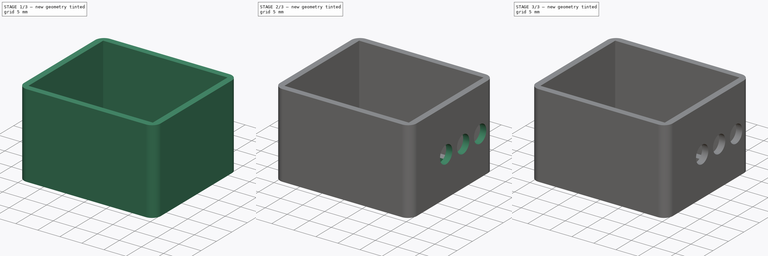
[diagram: build sequence overview — one tinted view per stage of 3, left to right]
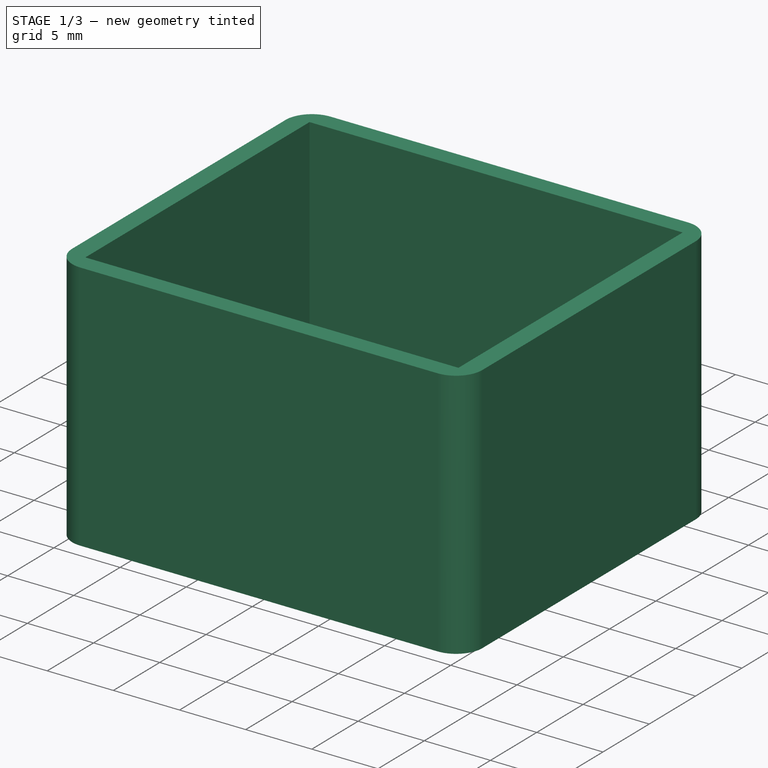
[diagram: stage 1 of 3 — iso view after this stage's code; geometry added in this stage tinted green]
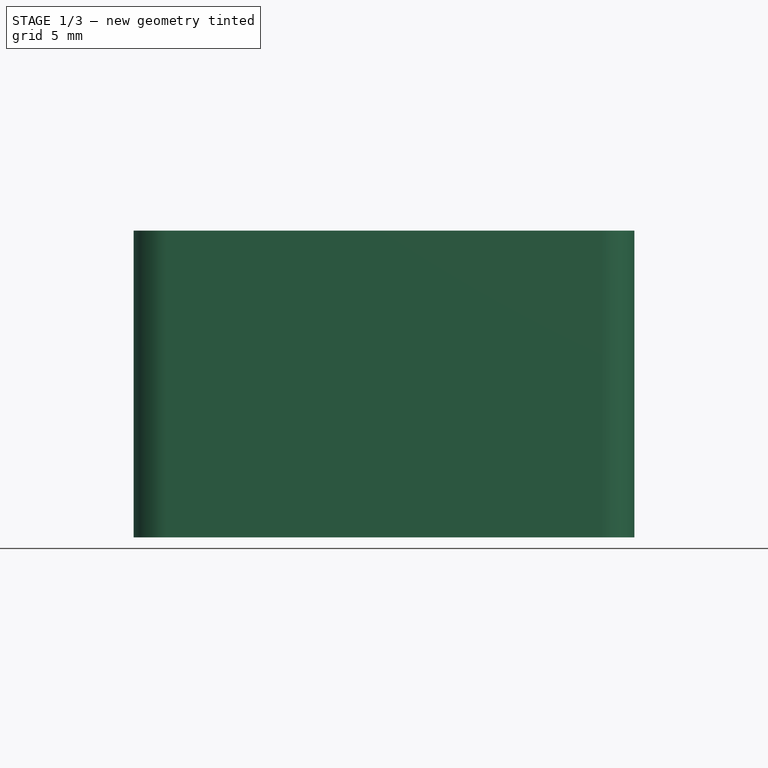
[diagram: stage 1 of 3 — front view after this stage's code; geometry added in this stage tinted green]
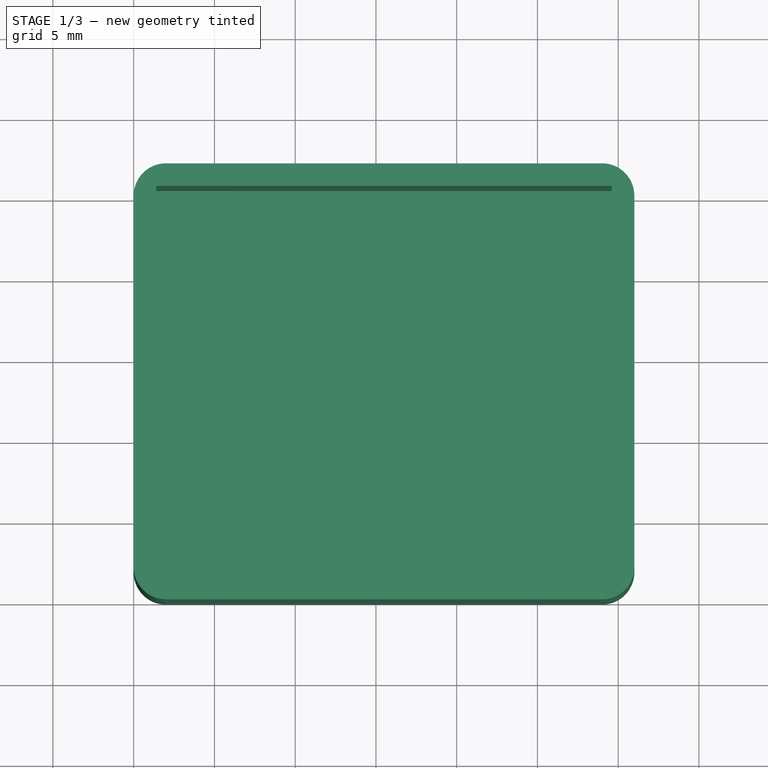
[diagram: stage 1 of 3 — top view after this stage's code; geometry added in this stage tinted green]
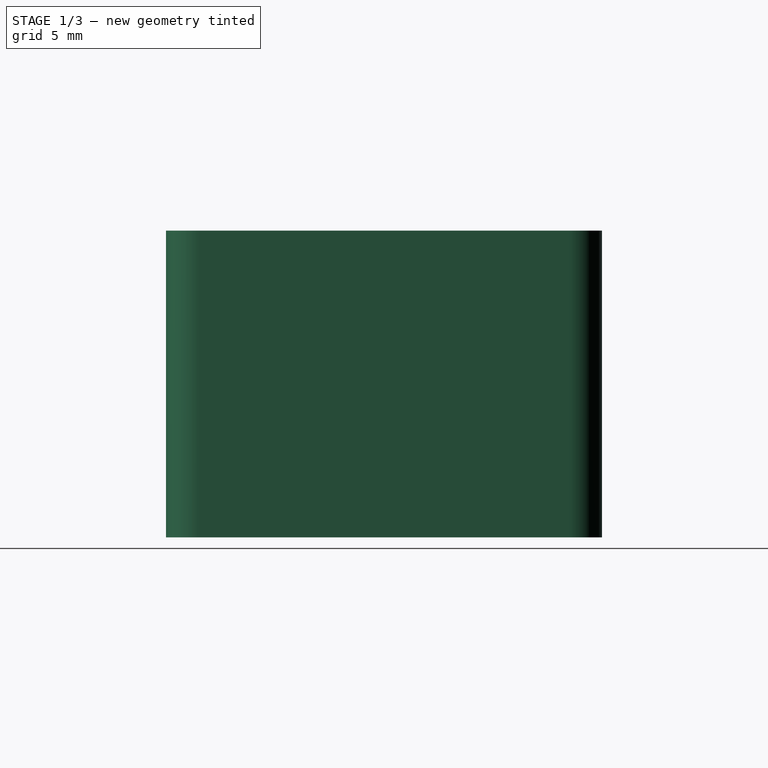
[diagram: stage 1 of 3 — right view after this stage's code; geometry added in this stage tinted green]
FCSTD DOCUMENT  (FreeCAD 2024.1003R39043 (Git))
Label: RadonCase
License: All rights reserved
LicenseURL: https://en.wikipedia.org/wiki/All_rights_reserved
objects: Sketcher::SketchObject×6, PartDesign::Pocket×4, PartDesign::Pad×2, PartDesign::Body×1
note: 31 computed .brp shape members not serialized (recipe doc carries the construction recipe); baked Part::Feature solids carry a one-line shape summary decoded from their .brp

FEATURE [Sketcher::SketchObject] Sketch
  ArcFitTolerance = 1e-06
  AttachmentSupport = -> [XY_Plane]
  ExternalBSplineMaxDegree = 5
  ExternalBSplineTolerance = 0.0001
  FullyConstrained = true
  InternalTolerance = 1e-06
  InvalidShape = false
  MakeInternals = false
  MapMode = 5
  Support = -> [XY_Plane]
  TreeRank = 11
  ValidateShape = false
  sketch-geometry (14):
    g0: ArcOfCircle CenterX=2 CenterY=2 CenterZ=0 NormalX=0 NormalY=0 NormalZ=1 AngleXU=0 Radius=2 StartAngle=3.14159 EndAngle=4.71239
    g1: ArcOfCircle CenterX=29 CenterY=2 CenterZ=0 NormalX=0 NormalY=0 NormalZ=1 AngleXU=0 Radius=2 StartAngle=4.71239 EndAngle=6.28319
    g2: ArcOfCircle CenterX=29 CenterY=25 CenterZ=0 NormalX=0 NormalY=0 NormalZ=1 AngleXU=0 Radius=2 StartAngle=7e-16 EndAngle=1.5708
    g3: ArcOfCircle CenterX=2 CenterY=25 CenterZ=0 NormalX=0 NormalY=0 NormalZ=1 AngleXU=0 Radius=2 StartAngle=1.5708 EndAngle=3.14159
    g4: LineSegment StartX=0 StartY=25 StartZ=0 EndX=0 EndY=2 EndZ=0
    g5: LineSegment StartX=2 StartY=0 StartZ=0 EndX=29 EndY=0 EndZ=0
    g6: LineSegment StartX=31 StartY=2 StartZ=0 EndX=31 EndY=25 EndZ=0
    g7: LineSegment StartX=29 StartY=27 StartZ=0 EndX=2 EndY=27 EndZ=0
    g8: LineSegment [constr] StartX=15.5 StartY=27 StartZ=0 EndX=15.5 EndY=0 EndZ=0
    g9: LineSegment [constr] StartX=31 StartY=13.5 StartZ=0 EndX=0 EndY=13.5 EndZ=0
    g10: LineSegment [constr] StartX=1.4 StartY=25.6 StartZ=0 EndX=29.6 EndY=25.6 EndZ=0
    g11: LineSegment [constr] StartX=29.6 StartY=25.6 StartZ=0 EndX=29.6 EndY=1.4 EndZ=0
    g12: LineSegment [constr] StartX=29.6 StartY=1.4 StartZ=0 EndX=1.4 EndY=1.4 EndZ=0
    g13: LineSegment [constr] StartX=1.4 StartY=1.4 StartZ=0 EndX=1.4 EndY=25.6 EndZ=0
  constraints (37):
    c: Vertical(g4)
    c: Horizontal(g5)
    c: Vertical(g6)
    c: Horizontal(g7)
    c: Tangent(g7,g2) = -1.5708
    c: Tangent(g6,g2) = -1.5708
    c: Tangent(g6,g1) = -1.5708
    c: Tangent(g5,g1) = -1.5708
    c: Tangent(g4,g0) = -1.5708
    c: Tangent(g4,g3) = -1.5708
    c: Tangent(g7,g3) = -1.5708
    c: Equal(g2,g3)
    c: Equal(g2,g0)
    c: Diameter(g2) = 4
    c: PointOnObject(g8,g7)
    c: PointOnObject(g9,g6)
    c: Symmetric(g0,g1,g8)
    c: PointOnObject(g0,g-2)
    c: Coincident(g5,g0)
    c: PointOnObject(g0,g-1)
    c: Equal(g2,g1)
    c: DistanceY(g1,g2) = 27
    c: DistanceX(g0,g1) = 31
    c: Vertical(g8)
    c: PointOnObject(g9,g4)
    c: Symmetric(g0,g3,g9)
    c: Coincident(g10,g11)
    c: Coincident(g11,g12)
    c: Coincident(g12,g13)
    c: Coincident(g13,g10)
    c: Horizontal(g10)
    c: Vertical(g11)
    c: Vertical(g13)
    c: Symmetric(g11,g12,g8)
    c: Symmetric(g11,g10,g9)
    c: DistanceY(g1,g11) = 1.4
    c: DistanceX(g11,g1) = 1.4
FEATURE [PartDesign::Pad] Pad
  AddSubType = 0
  AlongSketchNormal = false
  AutoTaperInnerAngle = true
  CheckUpToFaceLimits = true
  ClaimChildren = false
  Direction = (0,0,1)
  Fit = 0
  FitJoin = 0
  InnerFit = 0
  InnerFitJoin = 0
  InvalidShape = false
  Length = 19
  Length2 = 10
  Linearize = true
  NewSolid = false
  Profile = -> Sketch
  ReferenceAxis = -> Sketch [N_Axis]
  Suppress = false
  TaperInnerAngle = 0
  TaperInnerAngleRev = 0
  TreeRank = 12
  Type = 0
  ValidateShape = true
  _ProfileBasedVersion = 1
FEATURE [Sketcher::SketchObject] Sketch001
  ArcFitTolerance = 1e-06
  AttachmentSupport = -> [Pad]
  ExternalBSplineMaxDegree = 5
  ExternalBSplineTolerance = 0.0001
  FullyConstrained = true
  InternalTolerance = 1e-06
  InvalidShape = false
  MakeInternals = false
  MapMode = 5
  Placement = pos=(0,0,19) rot=(0,0,1;0rad)
  Support = -> [Pad]
  TreeRank = 13
  ValidateShape = false
  sketch-geometry (6):
    g0: LineSegment StartX=1.4 StartY=25.6 StartZ=0 EndX=29.6 EndY=25.6 EndZ=0
    g1: LineSegment StartX=29.6 StartY=25.6 StartZ=0 EndX=29.6 EndY=1.4 EndZ=0
    g2: LineSegment StartX=29.6 StartY=1.4 StartZ=0 EndX=1.4 EndY=1.4 EndZ=0
    g3: LineSegment StartX=1.4 StartY=1.4 StartZ=0 EndX=1.4 EndY=25.6 EndZ=0
    g4: LineSegment [constr] StartX=15.5 StartY=0 StartZ=0 EndX=15.5 EndY=27 EndZ=0
    g5: LineSegment [constr] StartX=0 StartY=13.5 StartZ=0 EndX=31 EndY=13.5 EndZ=0
  constraints (18):
    c: Coincident(g0,g1)
    c: Coincident(g1,g2)
    c: Coincident(g2,g3)
    c: Coincident(g3,g0)
    c: Horizontal(g0)
    c: Horizontal(g2)
    c: Vertical(g1)
    c: Vertical(g3)
    c: PointOnObject(g4,g-1)
    c: PointOnObject(g5,g-2)
    c: DistanceX(g5,g5) = 31
    c: DistanceY(g4,g4) = 27
    c: DistanceX(g1,g5) = 1.4
    c: Symmetric(g0,g0,g4)
    c: Symmetric(g5,g5,g4)
    c: Symmetric(g4,g4,g5)
    c: Symmetric(g2,g0,g5)
    c: DistanceY(g-1,g2) = 1.4
FEATURE [PartDesign::Pocket] Pocket
  AddSubType = 1
  AlongSketchNormal = false
  AutoTaperInnerAngle = true
  BaseFeature = -> Pad
  CheckUpToFaceLimits = true
  ClaimChildren = false
  Direction = (0,0,-1)
  Fit = 0
  FitJoin = 0
  InnerFit = 0
  InnerFitJoin = 0
  InvalidShape = false
  Length = 18.2
  Length2 = 10
  Linearize = true
  NewSolid = false
  Profile = -> Sketch001
  ReferenceAxis = -> Sketch001 [N_Axis]
  Suppress = false
  TaperInnerAngle = 0
  TaperInnerAngleRev = 0
  TreeRank = 14
  Type = 0
  ValidateShape = true
  _ProfileBasedVersion = 1
  _Version = 1
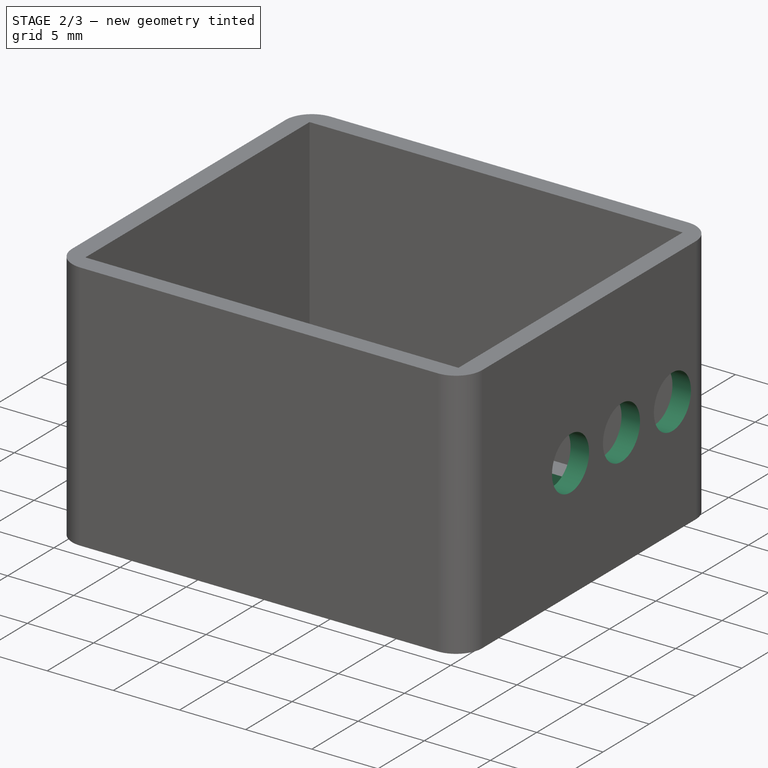
[diagram: stage 2 of 3 — iso view after this stage's code; geometry added in this stage tinted green]
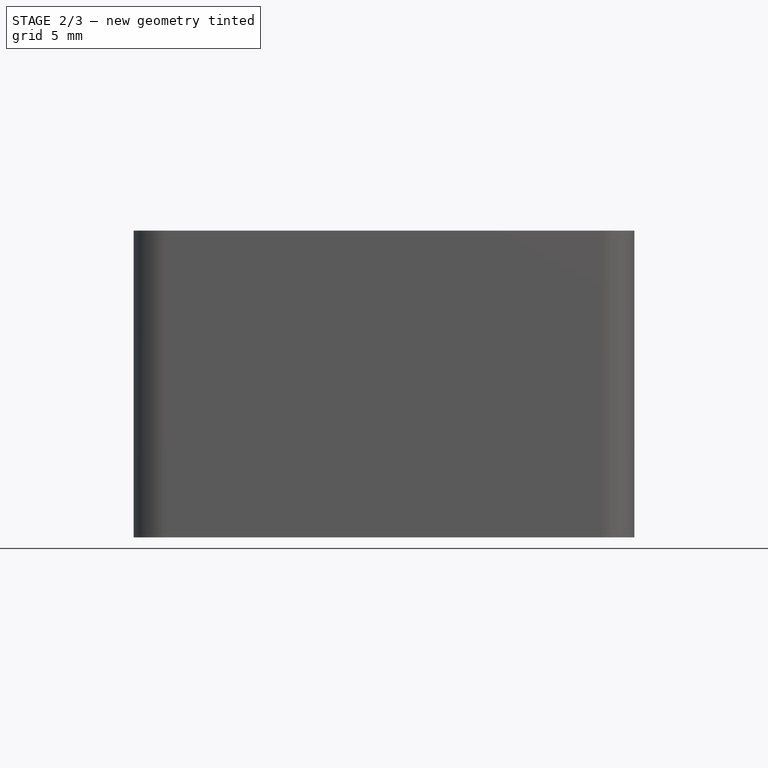
[diagram: stage 2 of 3 — front view after this stage's code; geometry added in this stage tinted green]
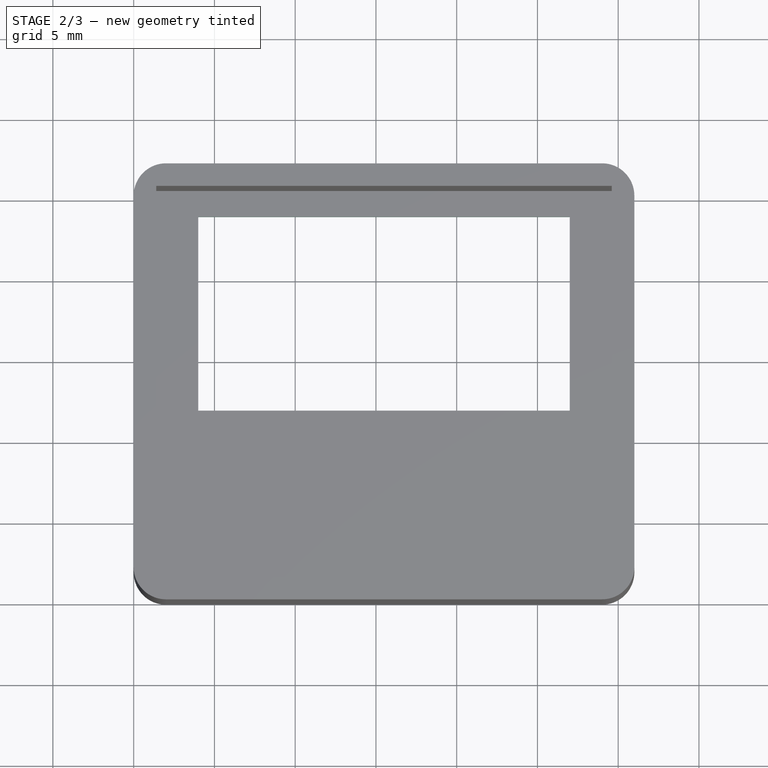
[diagram: stage 2 of 3 — top view after this stage's code; geometry added in this stage tinted green]
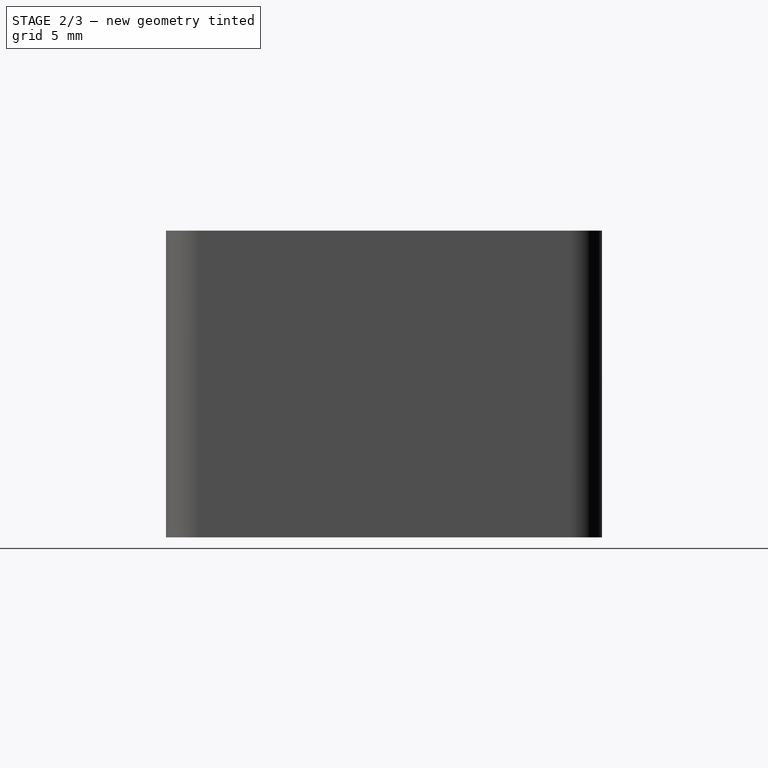
[diagram: stage 2 of 3 — right view after this stage's code; geometry added in this stage tinted green]
FEATURE [Sketcher::SketchObject] Sketch002
  ArcFitTolerance = 1e-06
  AttachmentSupport = -> [Pocket]
  ExternalBSplineMaxDegree = 5
  ExternalBSplineTolerance = 0.0001
  FullyConstrained = false
  InternalTolerance = 1e-06
  InvalidShape = false
  MakeInternals = false
  MapMode = 5
  Placement = pos=(0,0,0.8) rot=(0,0,1;0rad)
  Support = -> [Pocket]
  TreeRank = 15
  ValidateShape = false
  sketch-geometry (5):
    g0: LineSegment StartX=4 StartY=24 StartZ=0 EndX=27 EndY=24 EndZ=0
    g1: LineSegment StartX=27 StartY=24 StartZ=0 EndX=27 EndY=12 EndZ=0
    g2: LineSegment StartX=27 StartY=12 StartZ=0 EndX=4 EndY=12 EndZ=0
    g3: LineSegment StartX=4 StartY=12 StartZ=0 EndX=4 EndY=24 EndZ=0
    g4: LineSegment [constr] StartX=15.5 StartY=27.5344 StartZ=0 EndX=15.5 EndY=0 EndZ=0
  constraints (14):
    c: Coincident(g0,g1)
    c: Coincident(g1,g2)
    c: Coincident(g2,g3)
    c: Coincident(g3,g0)
    c: Horizontal(g0)
    c: Horizontal(g2)
    c: Vertical(g1)
    c: Vertical(g3)
    c: DistanceY(g-1,g0) = 24
    c: DistanceY(g1,g1) = 12
    c: PointOnObject(g4,g-1)
    c: DistanceX(g-1,g4) = 15.5
    c: Symmetric(g1,g2,g4)
    c: DistanceX(g2,g2) = 23
FEATURE [PartDesign::Pocket] Pocket001
  AddSubType = 1
  AlongSketchNormal = false
  AutoTaperInnerAngle = true
  BaseFeature = -> Pocket
  CheckUpToFaceLimits = true
  ClaimChildren = false
  Direction = (0,0,-1)
  Fit = 0
  FitJoin = 0
  InnerFit = 0
  InnerFitJoin = 0
  InvalidShape = false
  Length = 5
  Length2 = 10
  Linearize = true
  NewSolid = false
  Profile = -> Sketch002
  ReferenceAxis = -> Sketch002 [N_Axis]
  Suppress = false
  TaperInnerAngle = 0
  TaperInnerAngleRev = 0
  TreeRank = 16
  Type = 2
  ValidateShape = true
  _ProfileBasedVersion = 1
  _Version = 1
FEATURE [Sketcher::SketchObject] Sketch003
  ArcFitTolerance = 1e-06
  AttachmentSupport = -> [Pocket001]
  ExternalBSplineMaxDegree = 5
  ExternalBSplineTolerance = 0.0001
  FullyConstrained = false
  InternalTolerance = 1e-06
  InvalidShape = false
  MakeInternals = false
  MapMode = 5
  Placement = pos=(31,0,0) rot=(0.57735,0.57735,0.57735;2.0944rad)
  Support = -> [Pocket001]
  TreeRank = 17
  ValidateShape = false
  sketch-geometry (7):
    g0: Circle CenterX=11.5 CenterY=9 CenterZ=0 NormalX=0 NormalY=0 NormalZ=1 AngleXU=0 Radius=2
    g1: Circle CenterX=17 CenterY=9 CenterZ=0 NormalX=0 NormalY=0 NormalZ=1 AngleXU=0 Radius=2
    g2: Circle CenterX=22.5 CenterY=9 CenterZ=0 NormalX=0 NormalY=0 NormalZ=1 AngleXU=0 Radius=2
    g3: LineSegment [constr] StartX=11.5 StartY=9 StartZ=0 EndX=17 EndY=9 EndZ=0
    g4: LineSegment [constr] StartX=17 StartY=9 StartZ=0 EndX=22.5 EndY=9 EndZ=0
    g5: LineSegment [constr] StartX=11.5 StartY=7 StartZ=0 EndX=22.5 EndY=7 EndZ=0
    g6: LineSegment [constr] StartX=27 StartY=0 StartZ=0 EndX=27 EndY=19.0949 EndZ=0
  constraints (20):
    c: Equal(g2,g1)
    c: Equal(g2,g0)
    c: Diameter(g2) = 4
    c: Horizontal(g2,g1)
    c: Horizontal(g1,g0)
    c: Coincident(g3,g0)
    c: Coincident(g3,g1)
    c: Coincident(g4,g1)
    c: Coincident(g4,g2)
    c: Equal(g4,g3)
    c: DistanceX(g0,g2) = 11
    c: PointOnObject(g5,g0)
    c: PointOnObject(g5,g2)
    c: Horizontal(g5)
    c: Tangent(g5,g1)
    c: DistanceY(g-1,g5) = 7
    c: PointOnObject(g6,g-1)
    c: Vertical(g6)
    c: DistanceX(g-1,g6) = 27
    c: DistanceX(g2,g6) = 4.5
FEATURE [PartDesign::Pocket] Pocket002
  AddSubType = 1
  AlongSketchNormal = false
  AutoTaperInnerAngle = true
  BaseFeature = -> Pocket001
  CheckUpToFaceLimits = true
  ClaimChildren = false
  Direction = (-1,0,0)
  Fit = 0
  FitJoin = 0
  InnerFit = 0
  InnerFitJoin = 0
  InvalidShape = false
  Length = 5
  Length2 = 10
  Linearize = true
  NewSolid = false
  Profile = -> Sketch003
  ReferenceAxis = -> Sketch003 [N_Axis]
  Suppress = false
  TaperInnerAngle = 0
  TaperInnerAngleRev = 0
  TreeRank = 18
  Type = 2
  ValidateShape = true
  _ProfileBasedVersion = 1
  _Version = 1
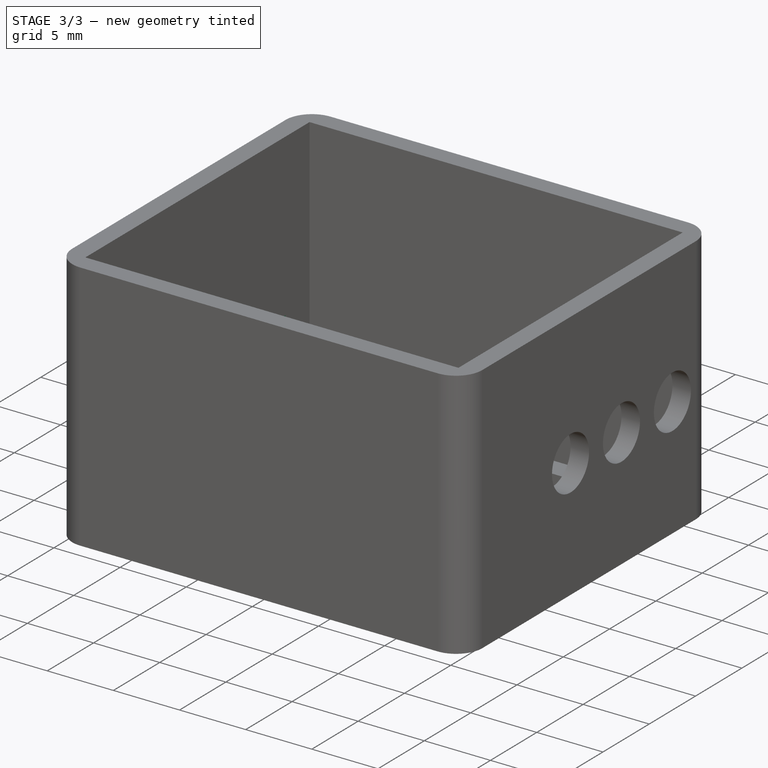
[diagram: stage 3 of 3 — iso view after this stage's code; geometry added in this stage tinted green]
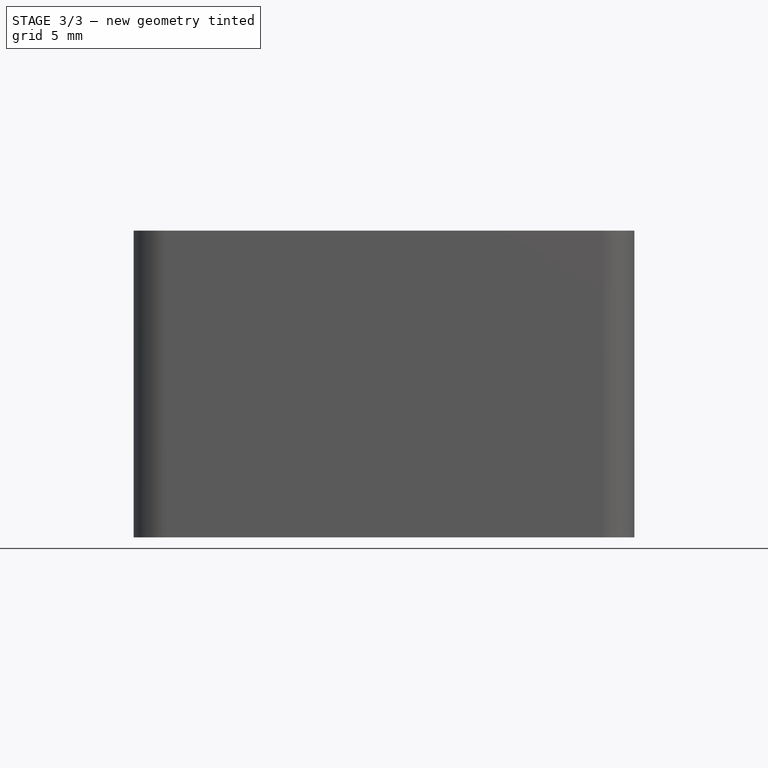
[diagram: stage 3 of 3 — front view after this stage's code; geometry added in this stage tinted green]
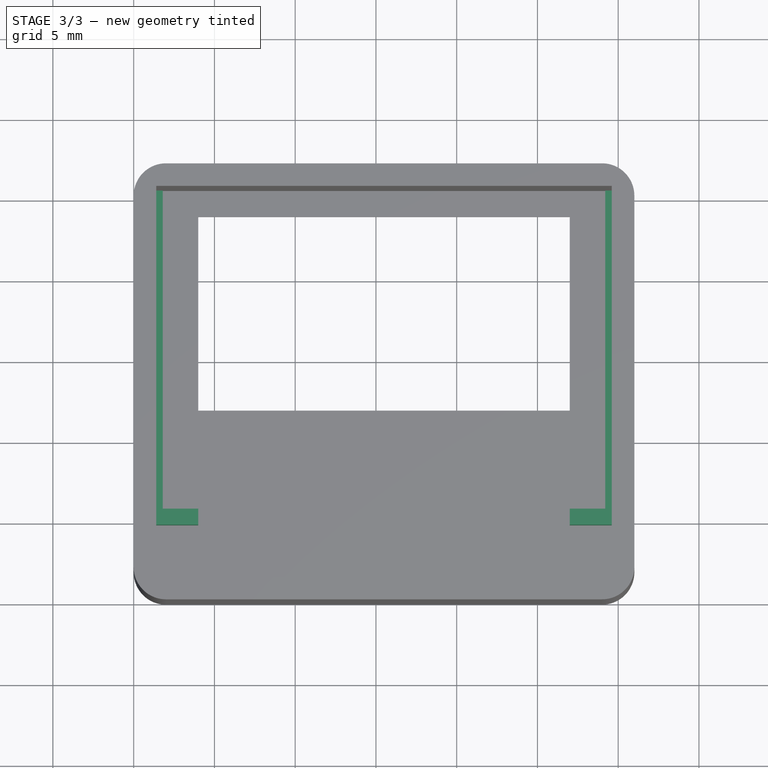
[diagram: stage 3 of 3 — top view after this stage's code; geometry added in this stage tinted green]
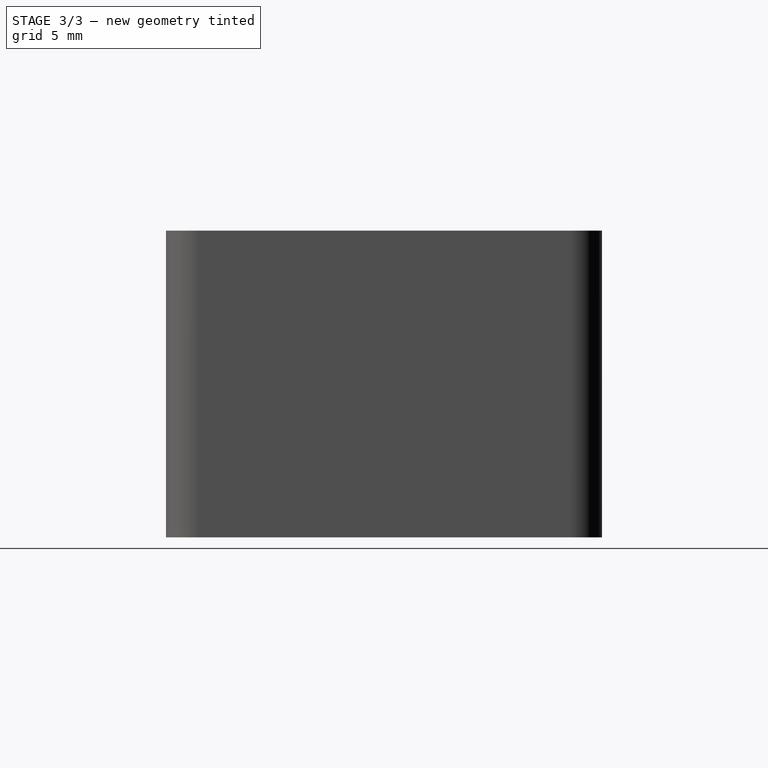
[diagram: stage 3 of 3 — right view after this stage's code; geometry added in this stage tinted green]
FEATURE [Sketcher::SketchObject] Sketch004
  ArcFitTolerance = 1e-06
  AttachmentSupport = -> [Pocket002]
  ExternalBSplineMaxDegree = 5
  ExternalBSplineTolerance = 0.0001
  FullyConstrained = false
  InternalTolerance = 1e-06
  InvalidShape = false
  MakeInternals = false
  MapMode = 5
  Placement = pos=(0,0,0) rot=(0.57735,-0.57735,-0.57735;2.0944rad)
  Support = -> [Pocket002]
  TreeRank = 19
  ValidateShape = false
  sketch-geometry (5):
    g0: LineSegment StartX=-23 StartY=6.8 StartZ=0 EndX=-13 EndY=6.8 EndZ=0
    g1: LineSegment StartX=-13 StartY=6.8 StartZ=0 EndX=-13 EndY=3.3 EndZ=0
    g2: LineSegment StartX=-13 StartY=3.3 StartZ=0 EndX=-23 EndY=3.3 EndZ=0
    g3: LineSegment StartX=-23 StartY=3.3 StartZ=0 EndX=-23 EndY=6.8 EndZ=0
    g4: LineSegment [constr] StartX=-27 StartY=0 StartZ=0 EndX=-27 EndY=19.2411 EndZ=0
  constraints (15):
    c: Coincident(g0,g1)
    c: Coincident(g1,g2)
    c: Coincident(g2,g3)
    c: Coincident(g3,g0)
    c: Horizontal(g0)
    c: Horizontal(g2)
    c: Vertical(g1)
    c: Vertical(g3)
    c: PointOnObject(g4,g-1)
    c: Vertical(g4)
    c: DistanceX(g4,g-1) = 27
    c: DistanceX(g4,g1) = 14
    c: DistanceX(g0,g0) = 10
    c: DistanceY(g1,g1) = 3.5
    c: DistanceY(g-1,g1) = 3.3
FEATURE [PartDesign::Pocket] Pocket003
  AddSubType = 1
  AlongSketchNormal = false
  AutoTaperInnerAngle = true
  BaseFeature = -> Pocket002
  CheckUpToFaceLimits = true
  ClaimChildren = false
  Direction = (1,0,0)
  Fit = 0
  FitJoin = 0
  InnerFit = 0
  InnerFitJoin = 0
  InvalidShape = false
  Length = 5
  Length2 = 10
  Linearize = true
  NewSolid = false
  Profile = -> Sketch004
  ReferenceAxis = -> Sketch004 [N_Axis]
  Suppress = false
  TaperInnerAngle = 0
  TaperInnerAngleRev = 0
  TreeRank = 20
  Type = 2
  ValidateShape = true
  _ProfileBasedVersion = 1
  _Version = 1
FEATURE [Sketcher::SketchObject] Sketch005
  ArcFitTolerance = 1e-06
  AttachmentSupport = -> [Pocket003]
  ExternalBSplineMaxDegree = 5
  ExternalBSplineTolerance = 0.0001
  FullyConstrained = false
  InternalTolerance = 1e-06
  InvalidShape = false
  MakeInternals = false
  MapMode = 5
  Placement = pos=(0,0,0.8) rot=(0,0,1;0rad)
  Support = -> [Pocket003]
  TreeRank = 21
  ValidateShape = false
  sketch-geometry (13):
    g0: LineSegment StartX=1.2 StartY=25.6 StartZ=0 EndX=1.2 EndY=4.9 EndZ=0
    g1: LineSegment StartX=1.2 StartY=4.9 StartZ=0 EndX=4 EndY=4.9 EndZ=0
    g2: LineSegment StartX=4 StartY=4.9 StartZ=0 EndX=4 EndY=5.9 EndZ=0
    g3: LineSegment StartX=4 StartY=5.9 StartZ=0 EndX=1.8 EndY=5.9 EndZ=0
    g4: LineSegment StartX=1.8 StartY=5.9 StartZ=0 EndX=1.8 EndY=25.6 EndZ=0
    g5: LineSegment StartX=1.2 StartY=25.6 StartZ=0 EndX=1.8 EndY=25.6 EndZ=0
    g6: LineSegment StartX=27 StartY=4.9 StartZ=0 EndX=29.8 EndY=4.9 EndZ=0
    g7: LineSegment StartX=29.8 StartY=4.9 StartZ=0 EndX=29.8 EndY=25.6 EndZ=0
    g8: LineSegment StartX=27 StartY=4.9 StartZ=0 EndX=27 EndY=5.9 EndZ=0
    g9: LineSegment StartX=27 StartY=5.9 StartZ=0 EndX=29.2 EndY=5.9 EndZ=0
    g10: LineSegment StartX=29.2 StartY=5.9 StartZ=0 EndX=29.2 EndY=25.6 EndZ=0
    g11: LineSegment StartX=29.8 StartY=25.6 StartZ=0 EndX=29.2 EndY=25.6 EndZ=0
    g12: LineSegment [constr] StartX=15.5 StartY=0 StartZ=0 EndX=15.5 EndY=29.4407 EndZ=0
  constraints (37):
    c: Vertical(g0)
    c: Coincident(g1,g0)
    c: Horizontal(g1)
    c: Coincident(g2,g1)
    c: Vertical(g2)
    c: Coincident(g3,g2)
    c: Horizontal(g3)
    c: Coincident(g4,g3)
    c: Vertical(g4)
    c: Coincident(g5,g0)
    c: Coincident(g5,g4)
    c: Horizontal(g5)
    c: Horizontal(g6)
    c: Coincident(g7,g6)
    c: Vertical(g7)
    c: Coincident(g8,g6)
    c: Vertical(g8)
    c: Coincident(g9,g8)
    c: Horizontal(g9)
    c: Coincident(g10,g9)
    c: Vertical(g10)
    c: Coincident(g11,g7)
    c: Coincident(g11,g10)
    c: Horizontal(g11)
    c: DistanceX(g4,g10) = 27.4
    c: PointOnObject(g12,g-1)
    c: Vertical(g12)
    c: DistanceX(g-1,g12) = 15.5
    c: Symmetric(g10,g4,g12)
    c: DistanceX(g11,g11) = 0.6
    c: Equal(g11,g5)
    c: DistanceY(g-1,g7) = 25.6
    c: DistanceY(g3,g4) = 19.7
    c: DistanceY(g2,g2) = 1
    c: Symmetric(g6,g1,g12)
    c: DistanceX(g1,g6) = 23
    c: Horizontal(g2,g8)
FEATURE [PartDesign::Pad] Pad001
  AddSubType = 0
  AlongSketchNormal = false
  AutoTaperInnerAngle = true
  BaseFeature = -> Pocket003
  CheckUpToFaceLimits = true
  ClaimChildren = false
  Direction = (0,0,1)
  Fit = 0
  FitJoin = 0
  InnerFit = 0
  InnerFitJoin = 0
  InvalidShape = false
  Length = 2
  Length2 = 10
  Linearize = true
  NewSolid = false
  Profile = -> Sketch005
  ReferenceAxis = -> Sketch005 [N_Axis]
  Suppress = false
  TaperInnerAngle = 0
  TaperInnerAngleRev = 0
  TreeRank = 22
  Type = 0
  ValidateShape = true
  _ProfileBasedVersion = 1
FEATURE [PartDesign::Body] Body
  AutoGroupSolids = false
  ClaimAllChildren = false
  ExportMode = 0
  Group = -> [Sketch,Pad,Sketch001,Pocket,Sketch002,Pocket001,Sketch003,Pocket002,Sketch004,Pocket003,Sketch005,Pad001]
  InvalidShape = false
  Origin = -> Origin
  Tip = -> Pad001
  TreeRank = 10
  ValidateShape = false
  _ExportChildren = -> [Pad,Pocket,Pocket001,Pocket002,Pocket003,Pad001]
  _GroupVersion = 1
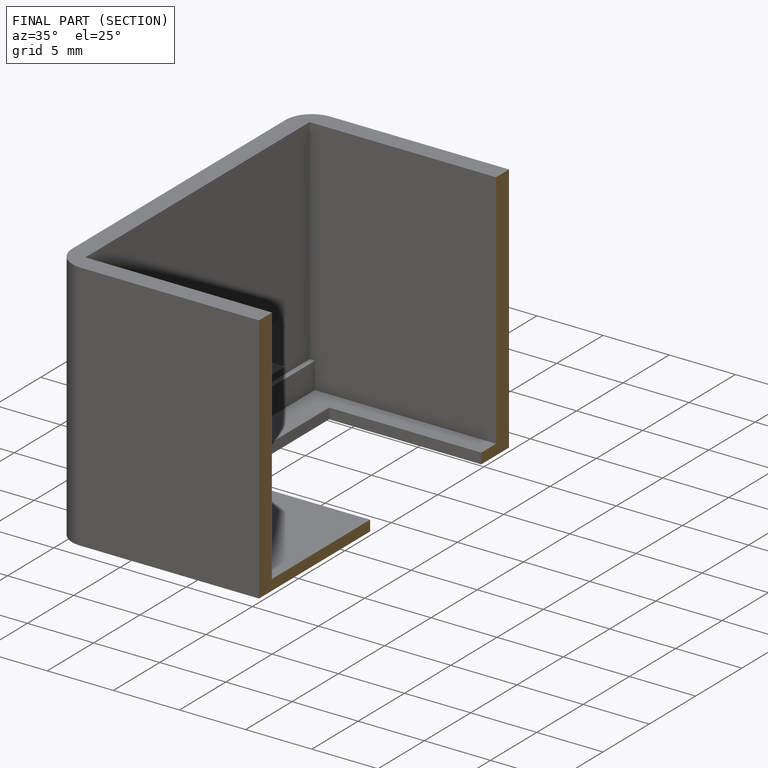
[diagram: finished part — half-section view (interior)]
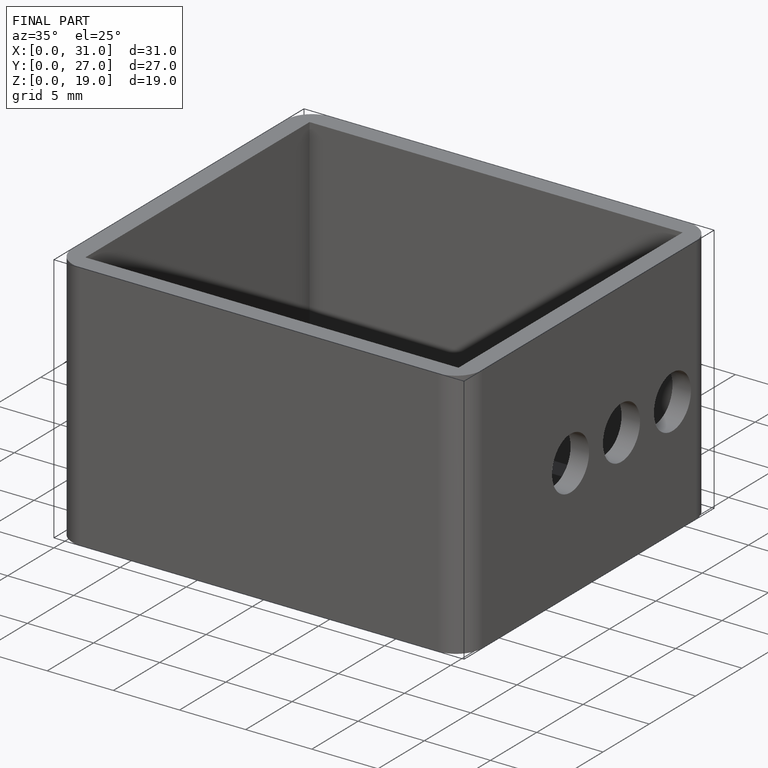
[diagram: finished part — iso view with bounding-box wireframe]
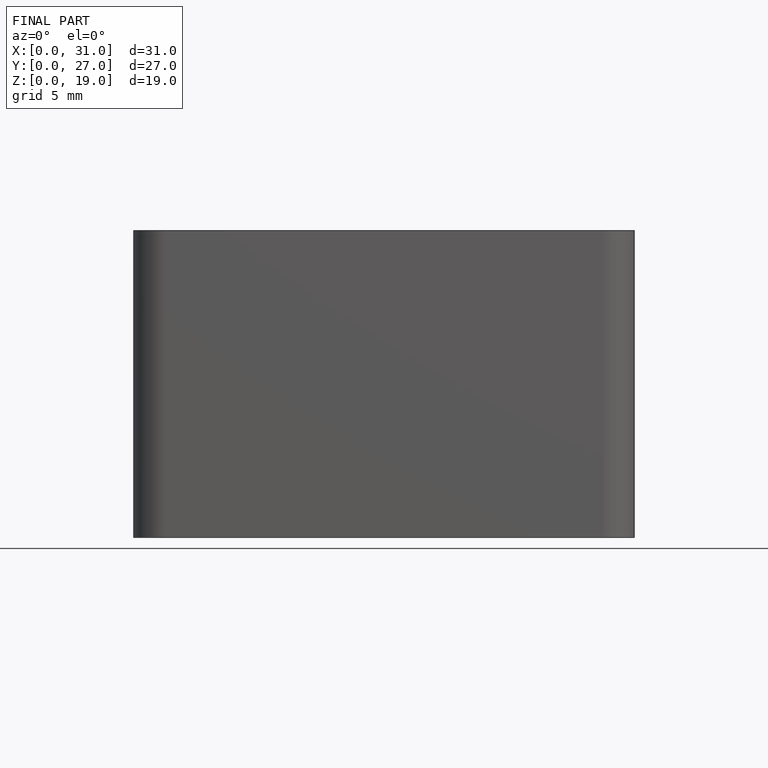
[diagram: finished part — front view with bounding-box wireframe]
